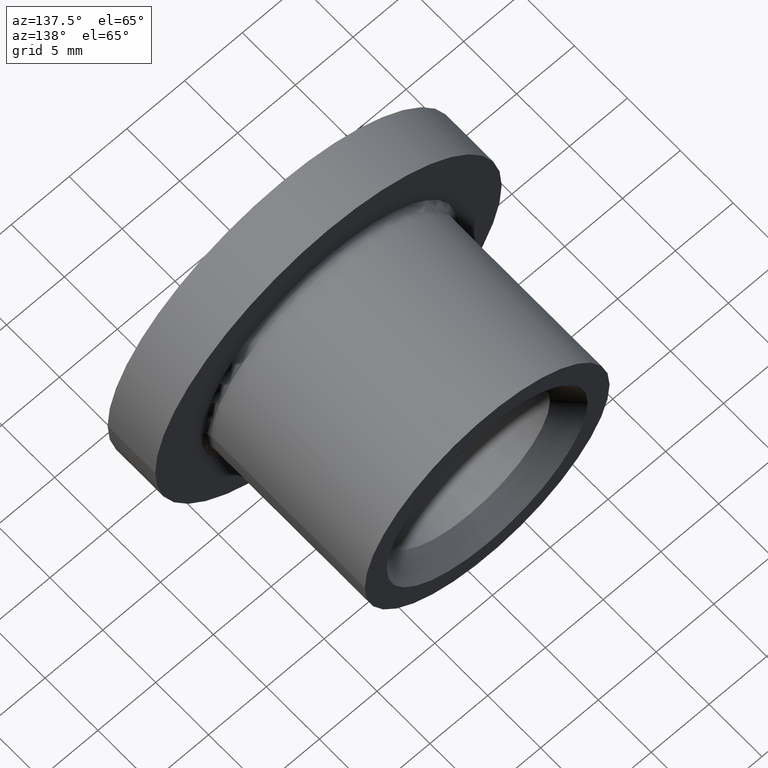
[diagram: clean part render]
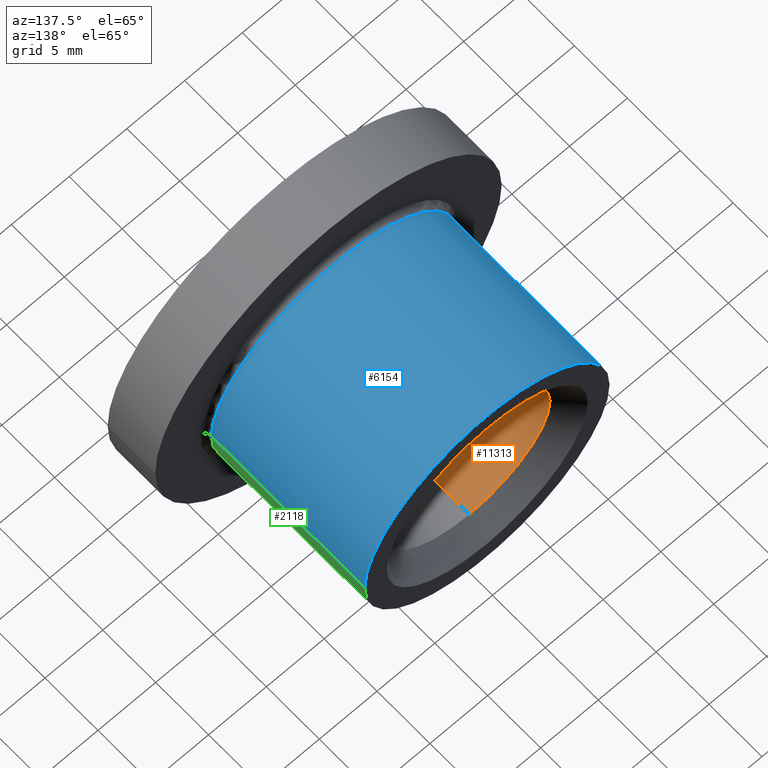
[diagram: same view with three faces highlighted in distinct colors, each labeled with its STEP entity id]
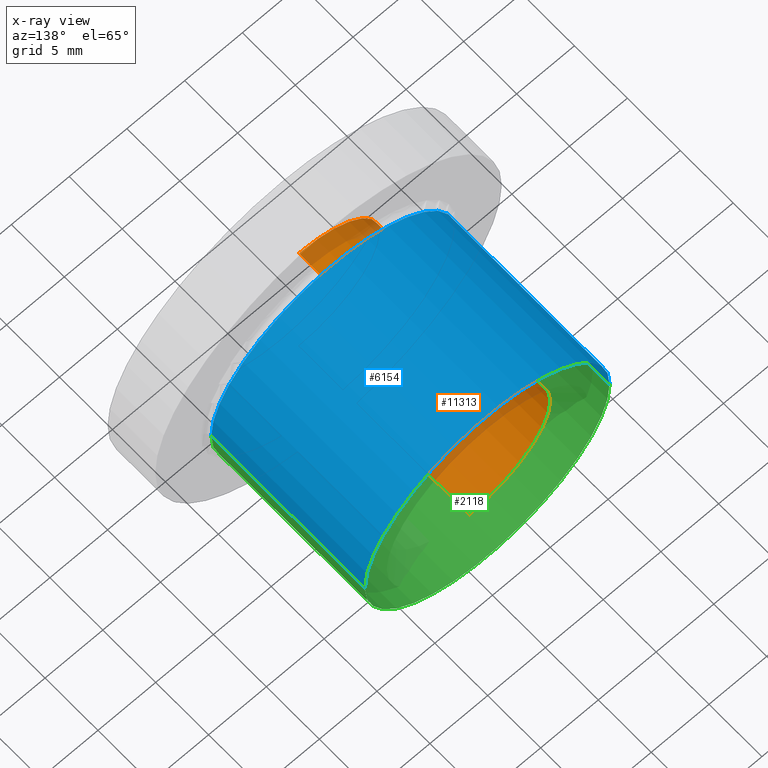
[diagram: x-ray of the same camera — body ghosted, the three highlighted faces saturated]
A machine part, auxiliary view with three faces highlighted in distinct colors.
The next image is the same camera in x-ray (body ghosted, the three faces saturated) — at least one of them is partly hidden behind the body in this view.
Their STEP definitions:

[orange] entity #11313 — the highlighted cylindrical surface (partial cylindrical patch) has radius 7 mm, axis along (-0, 1, -0).
#6 = ORIENTED_EDGE ( 'NONE', *, *, #5936, .T. ) ;
#87 = AXIS2_PLACEMENT_3D ( 'NONE', #10020, #11931, #10862 ) ;
#521 = CARTESIAN_POINT ( 'NONE',  ( 2.449293598294700000E-016, 17.80000000000000800, -6.999999999999998200 ) ) ;
#568 = EDGE_LOOP ( 'NONE', ( #7848, #7267, #6, #10484 ) ) ;
#810 = VERTEX_POINT ( 'NONE', #7049 ) ;
#1268 = LINE ( 'NONE', #4440, #9269 ) ;
#1534 = DIRECTION ( 'NONE',  ( -0.0000000000000000000, 1.000000000000000000, -0.0000000000000000000 ) ) ;
#2312 = EDGE_CURVE ( 'NONE', #3980, #810, #1268, .T. ) ;
#2488 = CIRCLE ( 'NONE', #87, 6.999999999999995600 ) ;
#3940 = LINE ( 'NONE', #10878, #6335 ) ;
#3980 = VERTEX_POINT ( 'NONE', #11185 ) ;
#4440 = CARTESIAN_POINT ( 'NONE',  ( -6.123233995736770200E-016, 19.50000000000000400, 6.999999999999996400 ) ) ;
#5186 = DIRECTION ( 'NONE',  ( -0.0000000000000000000, 1.000000000000000000, -0.0000000000000000000 ) ) ;
#5555 = AXIS2_PLACEMENT_3D ( 'NONE', #7220, #1534, #6363 ) ;
#5641 = EDGE_CURVE ( 'NONE', #9634, #6838, #3940, .T. ) ;
#5936 = EDGE_CURVE ( 'NONE', #6838, #810, #10786, .T. ) ;
#6049 = AXIS2_PLACEMENT_3D ( 'NONE', #8103, #10989, #6212 ) ;
#6212 = DIRECTION ( 'NONE',  ( 0.0000000000000000000, 0.0000000000000000000, 1.000000000000000000 ) ) ;
#6282 = EDGE_CURVE ( 'NONE', #9634, #3980, #2488, .T. ) ;
#6335 = VECTOR ( 'NONE', #5186, 1000.000000000000000 ) ;
#6363 = DIRECTION ( 'NONE',  ( 0.0000000000000000000, 0.0000000000000000000, 1.000000000000000000 ) ) ;
#6838 = VERTEX_POINT ( 'NONE', #521 ) ;
#7049 = CARTESIAN_POINT ( 'NONE',  ( -6.123233995736770200E-016, 17.80000000000000800, 6.999999999999997300 ) ) ;
#7220 = CARTESIAN_POINT ( 'NONE',  ( -6.123233995736770200E-016, 19.50000000000000400, 0.0000000000000000000 ) ) ;
#7267 = ORIENTED_EDGE ( 'NONE', *, *, #5641, .T. ) ;
#7848 = ORIENTED_EDGE ( 'NONE', *, *, #6282, .F. ) ;
#8103 = CARTESIAN_POINT ( 'NONE',  ( -6.123233995736770200E-016, 17.80000000000000800, 0.0000000000000000000 ) ) ;
#8441 = CYLINDRICAL_SURFACE ( 'NONE', #5555, 6.999999999999996400 ) ;
#9269 = VECTOR ( 'NONE', #10047, 1000.000000000000000 ) ;
#9491 = CARTESIAN_POINT ( 'NONE',  ( -6.123233995736770200E-016, 1.700000000000007100, -6.999999999999995600 ) ) ;
#9634 = VERTEX_POINT ( 'NONE', #9491 ) ;
#10020 = CARTESIAN_POINT ( 'NONE',  ( -6.123233995736770200E-016, 1.700000000000007100, 0.0000000000000000000 ) ) ;
#10047 = DIRECTION ( 'NONE',  ( -0.0000000000000000000, 1.000000000000000000, -0.0000000000000000000 ) ) ;
#10484 = ORIENTED_EDGE ( 'NONE', *, *, #2312, .F. ) ;
#10786 = CIRCLE ( 'NONE', #6049, 6.999999999999997300 ) ;
#10862 = DIRECTION ( 'NONE',  ( 0.0000000000000000000, 0.0000000000000000000, 1.000000000000000000 ) ) ;
#10878 = CARTESIAN_POINT ( 'NONE',  ( 2.449293598294698000E-016, 19.50000000000000400, -6.999999999999996400 ) ) ;
#10974 = FACE_OUTER_BOUND ( 'NONE', #568, .T. ) ;
#10989 = DIRECTION ( 'NONE',  ( -0.0000000000000000000, 1.000000000000000000, -0.0000000000000000000 ) ) ;
#11185 = CARTESIAN_POINT ( 'NONE',  ( 3.490243377569946700E-016, 1.700000000000007100, 6.999999999999995600 ) ) ;
#11313 = ADVANCED_FACE ( 'NONE', ( #10974 ), #8441, .F. ) ;
#11931 = DIRECTION ( 'NONE',  ( -0.0000000000000000000, 1.000000000000000000, -0.0000000000000000000 ) ) ;

[blue] entity #6154 — the highlighted cylindrical surface (partial cylindrical patch) has radius 10.6 mm, axis along (-0, 1, -0).
#379 = CARTESIAN_POINT ( 'NONE',  ( 10.60000000000000000, 19.50000000000000400, 1.298125607096194400E-015 ) ) ;
#1647 = EDGE_CURVE ( 'NONE', #4898, #6799, #6447, .T. ) ;
#2235 = DIRECTION ( 'NONE',  ( -3.140119997813727100E-017, 1.000000000000000000, -0.0000000000000000000 ) ) ;
#3199 = FACE_OUTER_BOUND ( 'NONE', #7134, .T. ) ;
#3433 = CARTESIAN_POINT ( 'NONE',  ( -6.123233995736769200E-016, 19.50000000000000400, 0.0000000000000000000 ) ) ;
#3569 = LINE ( 'NONE', #6913, #7765 ) ;
#3694 = CARTESIAN_POINT ( 'NONE',  ( -10.60000000000000000, 19.50000000000000000, 0.0000000000000000000 ) ) ;
#4139 = AXIS2_PLACEMENT_3D ( 'NONE', #3433, #4315, #10954 ) ;
#4315 = DIRECTION ( 'NONE',  ( -3.140119997813727100E-017, 1.000000000000000000, -0.0000000000000000000 ) ) ;
#4400 = CARTESIAN_POINT ( 'NONE',  ( 10.60000000000000000, 4.999999999999999100, 1.298125607096194400E-015 ) ) ;
#4660 = CARTESIAN_POINT ( 'NONE',  ( -1.570059998906863000E-016, 4.999999999999999100, 0.0000000000000000000 ) ) ;
#4788 = DIRECTION ( 'NONE',  ( 1.000000000000000000, 0.0000000000000000000, 0.0000000000000000000 ) ) ;
#4898 = VERTEX_POINT ( 'NONE', #5652 ) ;
#4949 = EDGE_CURVE ( 'NONE', #6799, #5848, #3569, .T. ) ;
#5006 = AXIS2_PLACEMENT_3D ( 'NONE', #5043, #11673, #7045 ) ;
#5043 = CARTESIAN_POINT ( 'NONE',  ( -6.123233995736768300E-016, 19.50000000000000000, 0.0000000000000000000 ) ) ;
#5425 = CYLINDRICAL_SURFACE ( 'NONE', #5006, 10.60000000000000000 ) ;
#5568 = DIRECTION ( 'NONE',  ( -3.140119997813727100E-017, 1.000000000000000000, -0.0000000000000000000 ) ) ;
#5580 = EDGE_CURVE ( 'NONE', #12095, #5848, #7096, .T. ) ;
#5652 = CARTESIAN_POINT ( 'NONE',  ( -10.60000000000000000, 4.999999999999999100, 0.0000000000000000000 ) ) ;
#5848 = VERTEX_POINT ( 'NONE', #379 ) ;
#6135 = AXIS2_PLACEMENT_3D ( 'NONE', #4660, #10489, #4788 ) ;
#6154 = ADVANCED_FACE ( 'NONE', ( #3199 ), #5425, .T. ) ;
#6179 = VECTOR ( 'NONE', #5568, 1000.000000000000000 ) ;
#6447 = CIRCLE ( 'NONE', #6135, 10.60000000000000000 ) ;
#6799 = VERTEX_POINT ( 'NONE', #4400 ) ;
#6817 = CARTESIAN_POINT ( 'NONE',  ( -10.60000000000000000, 19.50000000000000400, 0.0000000000000000000 ) ) ;
#6913 = CARTESIAN_POINT ( 'NONE',  ( 10.60000000000000000, 19.50000000000000000, 1.298125607096194400E-015 ) ) ;
#7045 = DIRECTION ( 'NONE',  ( -1.000000000000000000, 0.0000000000000000000, 0.0000000000000000000 ) ) ;
#7096 = CIRCLE ( 'NONE', #4139, 10.60000000000000000 ) ;
#7134 = EDGE_LOOP ( 'NONE', ( #11882, #8801, #7373, #11688 ) ) ;
#7373 = ORIENTED_EDGE ( 'NONE', *, *, #5580, .F. ) ;
#7765 = VECTOR ( 'NONE', #2235, 1000.000000000000000 ) ;
#8267 = EDGE_CURVE ( 'NONE', #4898, #12095, #11828, .T. ) ;
#8801 = ORIENTED_EDGE ( 'NONE', *, *, #4949, .T. ) ;
#10489 = DIRECTION ( 'NONE',  ( -3.140119997813727100E-017, 1.000000000000000000, -0.0000000000000000000 ) ) ;
#10954 = DIRECTION ( 'NONE',  ( -1.000000000000000000, 0.0000000000000000000, 0.0000000000000000000 ) ) ;
#11673 = DIRECTION ( 'NONE',  ( -3.140119997813727100E-017, 1.000000000000000000, -0.0000000000000000000 ) ) ;
#11688 = ORIENTED_EDGE ( 'NONE', *, *, #8267, .F. ) ;
#11828 = LINE ( 'NONE', #3694, #6179 ) ;
#11882 = ORIENTED_EDGE ( 'NONE', *, *, #1647, .T. ) ;
#12095 = VERTEX_POINT ( 'NONE', #6817 ) ;

[green] entity #2118 — the highlighted cylindrical surface (partial cylindrical patch) has radius 10.6 mm, axis along (-0, 1, -0).
#379 = CARTESIAN_POINT ( 'NONE',  ( 10.60000000000000000, 19.50000000000000400, 1.298125607096194400E-015 ) ) ;
#2118 = ADVANCED_FACE ( 'NONE', ( #3031 ), #9001, .T. ) ;
#2235 = DIRECTION ( 'NONE',  ( -3.140119997813727100E-017, 1.000000000000000000, -0.0000000000000000000 ) ) ;
#2252 = DIRECTION ( 'NONE',  ( -1.000000000000000000, 0.0000000000000000000, 0.0000000000000000000 ) ) ;
#2457 = AXIS2_PLACEMENT_3D ( 'NONE', #10706, #8756, #2252 ) ;
#2458 = CIRCLE ( 'NONE', #2457, 10.60000000000000000 ) ;
#2530 = ORIENTED_EDGE ( 'NONE', *, *, #7667, .T. ) ;
#2673 = DIRECTION ( 'NONE',  ( 1.000000000000000000, 0.0000000000000000000, 0.0000000000000000000 ) ) ;
#3031 = FACE_OUTER_BOUND ( 'NONE', #3228, .T. ) ;
#3228 = EDGE_LOOP ( 'NONE', ( #11670, #2530, #8271, #5784 ) ) ;
#3569 = LINE ( 'NONE', #6913, #7765 ) ;
#3694 = CARTESIAN_POINT ( 'NONE',  ( -10.60000000000000000, 19.50000000000000000, 0.0000000000000000000 ) ) ;
#4400 = CARTESIAN_POINT ( 'NONE',  ( 10.60000000000000000, 4.999999999999999100, 1.298125607096194400E-015 ) ) ;
#4898 = VERTEX_POINT ( 'NONE', #5652 ) ;
#4949 = EDGE_CURVE ( 'NONE', #6799, #5848, #3569, .T. ) ;
#5568 = DIRECTION ( 'NONE',  ( -3.140119997813727100E-017, 1.000000000000000000, -0.0000000000000000000 ) ) ;
#5652 = CARTESIAN_POINT ( 'NONE',  ( -10.60000000000000000, 4.999999999999999100, 0.0000000000000000000 ) ) ;
#5692 = DIRECTION ( 'NONE',  ( -3.140119997813727100E-017, 1.000000000000000000, -0.0000000000000000000 ) ) ;
#5784 = ORIENTED_EDGE ( 'NONE', *, *, #9492, .F. ) ;
#5848 = VERTEX_POINT ( 'NONE', #379 ) ;
#6179 = VECTOR ( 'NONE', #5568, 1000.000000000000000 ) ;
#6481 = CIRCLE ( 'NONE', #7271, 10.60000000000000000 ) ;
#6799 = VERTEX_POINT ( 'NONE', #4400 ) ;
#6817 = CARTESIAN_POINT ( 'NONE',  ( -10.60000000000000000, 19.50000000000000400, 0.0000000000000000000 ) ) ;
#6913 = CARTESIAN_POINT ( 'NONE',  ( 10.60000000000000000, 19.50000000000000000, 1.298125607096194400E-015 ) ) ;
#7271 = AXIS2_PLACEMENT_3D ( 'NONE', #10439, #5692, #2673 ) ;
#7646 = DIRECTION ( 'NONE',  ( -3.140119997813727100E-017, 1.000000000000000000, -0.0000000000000000000 ) ) ;
#7667 = EDGE_CURVE ( 'NONE', #6799, #4898, #6481, .T. ) ;
#7765 = VECTOR ( 'NONE', #2235, 1000.000000000000000 ) ;
#8074 = AXIS2_PLACEMENT_3D ( 'NONE', #11360, #7646, #12272 ) ;
#8267 = EDGE_CURVE ( 'NONE', #4898, #12095, #11828, .T. ) ;
#8271 = ORIENTED_EDGE ( 'NONE', *, *, #8267, .T. ) ;
#8756 = DIRECTION ( 'NONE',  ( -3.140119997813727100E-017, 1.000000000000000000, -0.0000000000000000000 ) ) ;
#9001 = CYLINDRICAL_SURFACE ( 'NONE', #8074, 10.60000000000000000 ) ;
#9492 = EDGE_CURVE ( 'NONE', #5848, #12095, #2458, .T. ) ;
#10439 = CARTESIAN_POINT ( 'NONE',  ( -1.570059998906863000E-016, 4.999999999999999100, 0.0000000000000000000 ) ) ;
#10706 = CARTESIAN_POINT ( 'NONE',  ( -6.123233995736769200E-016, 19.50000000000000400, 0.0000000000000000000 ) ) ;
#11360 = CARTESIAN_POINT ( 'NONE',  ( -6.123233995736768300E-016, 19.50000000000000000, 0.0000000000000000000 ) ) ;
#11670 = ORIENTED_EDGE ( 'NONE', *, *, #4949, .F. ) ;
#11828 = LINE ( 'NONE', #3694, #6179 ) ;
#12095 = VERTEX_POINT ( 'NONE', #6817 ) ;
#12272 = DIRECTION ( 'NONE',  ( -1.000000000000000000, 0.0000000000000000000, 0.0000000000000000000 ) ) ;